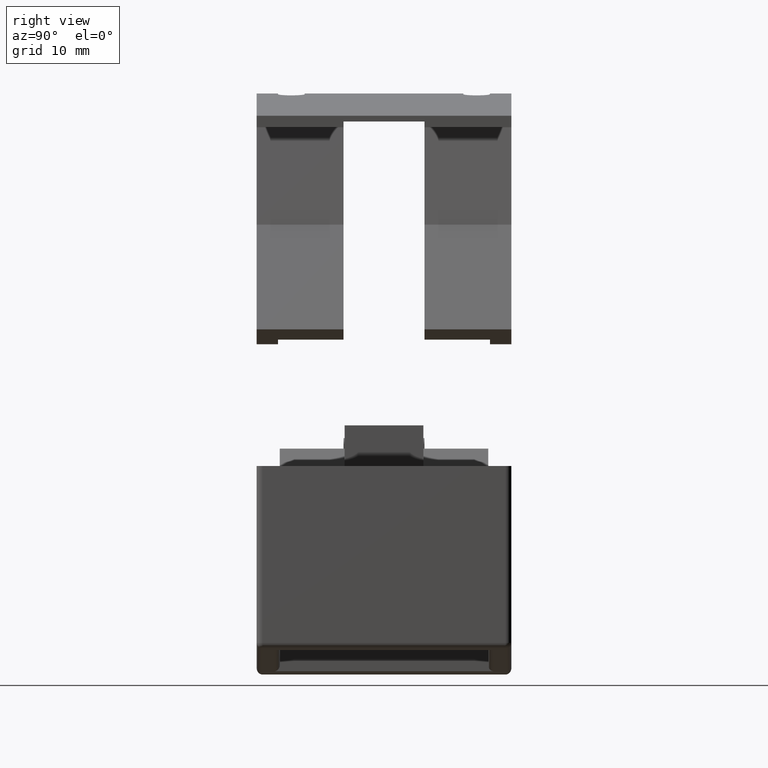
[diagram: clean part render]
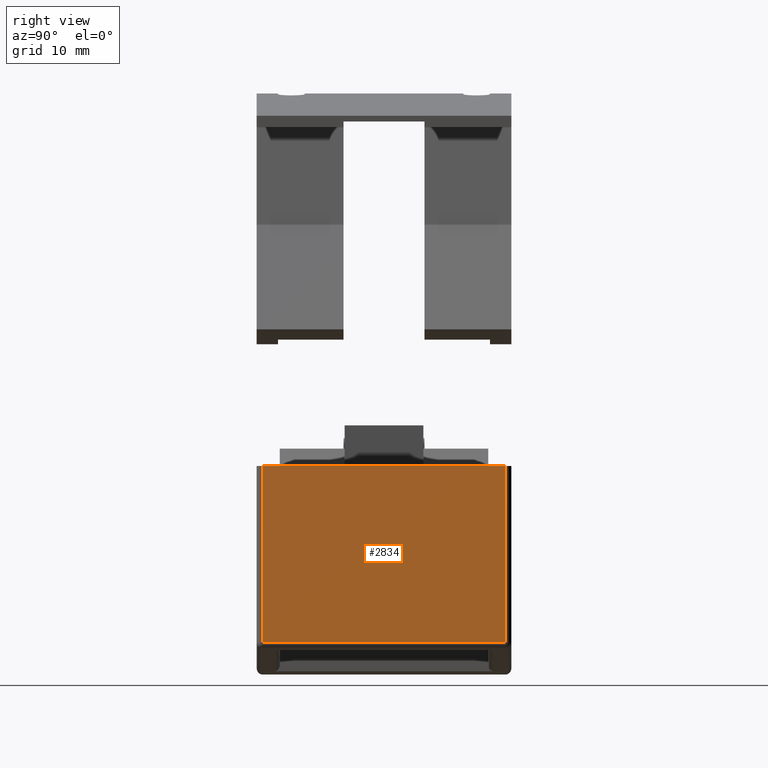
[diagram: same view with one face highlighted and labeled with its STEP entity id]
A machine part, right view. The second image highlights one B-rep face of the part: STEP entity #2834.
In plain terms, the highlighted planar face has unit normal (1, 0, -0).
Its self-contained STEP definition (entity closure, byte-faithful):
#60=PLANE('',#3087);
#207=FACE_OUTER_BOUND('',#357,.T.);
#357=EDGE_LOOP('',(#2191,#2192,#2193,#2194));
#511=LINE('',#4011,#884);
#515=LINE('',#4026,#888);
#518=LINE('',#4033,#891);
#602=LINE('',#4246,#975);
#884=VECTOR('',#3247,10.);
#888=VECTOR('',#3263,10.);
#891=VECTOR('',#3270,10.);
#975=VECTOR('',#3478,10.);
#1261=VERTEX_POINT('',#4001);
#1262=VERTEX_POINT('',#4005);
#1268=VERTEX_POINT('',#4024);
#1269=VERTEX_POINT('',#4029);
#1541=EDGE_CURVE('',#1262,#1261,#511,.T.);
#1548=EDGE_CURVE('',#1268,#1262,#515,.T.);
#1552=EDGE_CURVE('',#1261,#1269,#518,.T.);
#1658=EDGE_CURVE('',#1268,#1269,#602,.T.);
#2191=ORIENTED_EDGE('',*,*,#1548,.F.);
#2192=ORIENTED_EDGE('',*,*,#1658,.T.);
#2193=ORIENTED_EDGE('',*,*,#1552,.F.);
#2194=ORIENTED_EDGE('',*,*,#1541,.F.);
#2834=ADVANCED_FACE('',(#207),#60,.T.);
#3087=AXIS2_PLACEMENT_3D('',#4247,#3479,#3480);
#3247=DIRECTION('',(0.,1.,0.));
#3263=DIRECTION('',(0.,0.,1.));
#3270=DIRECTION('',(0.,0.,-1.));
#3478=DIRECTION('',(0.,1.,0.));
#3479=DIRECTION('center_axis',(1.,0.,0.));
#3480=DIRECTION('ref_axis',(0.,0.,-1.));
#4001=CARTESIAN_POINT('',(20.5,10.5,16.76791156036));
#4005=CARTESIAN_POINT('',(20.5,-10.5,16.76791156036));
#4011=CARTESIAN_POINT('',(20.5,0.,16.76791156036));
#4024=CARTESIAN_POINT('',(20.5,-10.5,1.5));
#4026=CARTESIAN_POINT('',(20.5,-10.5,13.5834471255872));
#4029=CARTESIAN_POINT('',(20.5,10.5,1.5));
#4033=CARTESIAN_POINT('',(20.5,10.5,13.5834471255872));
#4246=CARTESIAN_POINT('',(20.5,0.,1.5));
#4247=CARTESIAN_POINT('Origin',(20.5,0.,17.2));